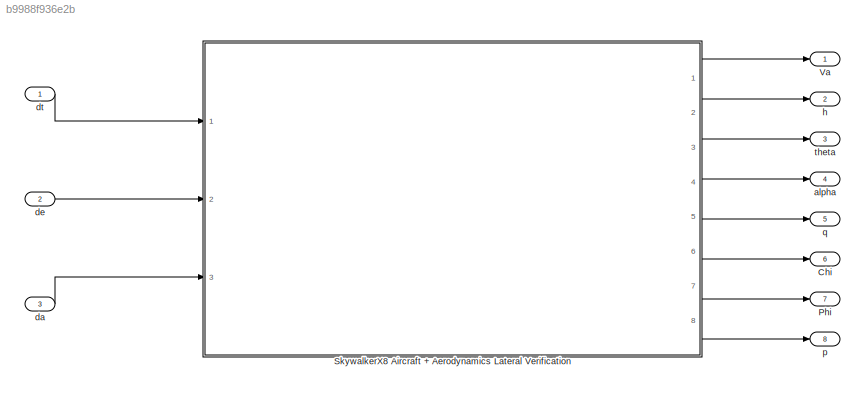
MODEL slx_b9988f936e2b
KIND model
CONFIG AbsTol = auto
CONFIG EnableMultiTasking = off
CONFIG FixedStep = 0.001
CONFIG MaxStep = auto
CONFIG MinStep = auto
CONFIG RelTol = 1e-3
CONFIG SampleTimeConstraint = Unconstrained
CONFIG Solver = FixedStepAuto
CONFIG SolverName = FixedStepAuto
CONFIG StartTime = 0.0
CONFIG StopTime = 10.0
BLOCK [Outport] Chi
  IconDisplay = Port number
  Port = 6
BLOCK [Outport] Phi
  IconDisplay = Port number
  Port = 7
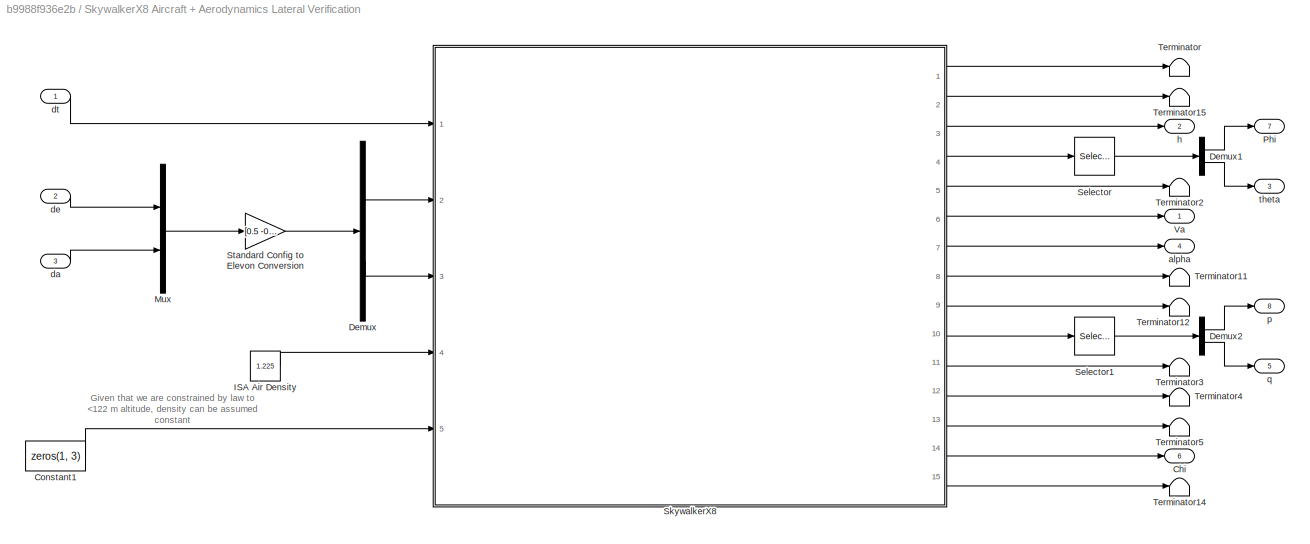
BLOCK [SubSystem] SkywalkerX8 Aircraft + Aerodynamics Lateral Verification
  Ports = [3, 8]
  RequestExecContextInheritance = off
BLOCK [Outport] SkywalkerX8 Aircraft + Aerodynamics Lateral Verification/Chi
  IconDisplay = Port number
  Port = 6
BLOCK [Constant] SkywalkerX8 Aircraft + Aerodynamics Lateral Verification/Constant1
  Value = zeros(1, 3)
BLOCK [Demux] SkywalkerX8 Aircraft + Aerodynamics Lateral Verification/Demux
  DisplayOption = bar
  Outputs = 2
  Ports = [1, 2]
BLOCK [Demux] SkywalkerX8 Aircraft + Aerodynamics Lateral Verification/Demux1
  DisplayOption = bar
  Outputs = 2
  Ports = [1, 2]
BLOCK [Demux] SkywalkerX8 Aircraft + Aerodynamics Lateral Verification/Demux2
  DisplayOption = bar
  Outputs = 2
  Ports = [1, 2]
BLOCK [Constant] SkywalkerX8 Aircraft + Aerodynamics Lateral Verification/ISA Air Density
  Value = 1.225
BLOCK [Mux] SkywalkerX8 Aircraft + Aerodynamics Lateral Verification/Mux
  DisplayOption = bar
  Inputs = 2
  Ports = [2, 1]
BLOCK [Outport] SkywalkerX8 Aircraft + Aerodynamics Lateral Verification/Phi
  IconDisplay = Port number
  Port = 7
BLOCK [Selector] SkywalkerX8 Aircraft + Aerodynamics Lateral Verification/Selector
  IndexOptions = Index vector (dialog)
  Indices = [1, 2]
  InputPortWidth = 3
  OutputSizes = 1
  Ports = [1, 1]
BLOCK [Selector] SkywalkerX8 Aircraft + Aerodynamics Lateral Verification/Selector1
  IndexOptions = Index vector (dialog)
  Indices = [1, 2]
  InputPortWidth = 3
  OutputSizes = 1
  Ports = [1, 1]
BLOCK [ModelReference] SkywalkerX8 Aircraft + Aerodynamics Lateral Verification/SkywalkerX8
  ModelNameDialog = SkywalkerX8_AircraftModel
  ModelReferenceVersion = 1.367
  Ports = [5, 15]
BLOCK [Gain] SkywalkerX8 Aircraft + Aerodynamics Lateral Verification/Standard Config to Elevon Conversion
  Gain = [0.5 -0.5;0.5 0.5]
  Multiplication = Matrix(K*u)
  OutDataTypeStr = Inherit: Inherit via internal rule
  ParamDataTypeStr = Inherit: Inherit via internal rule
  SaturateOnIntegerOverflow = off
BLOCK [Terminator] SkywalkerX8 Aircraft + Aerodynamics Lateral Verification/Terminator
BLOCK [Terminator] SkywalkerX8 Aircraft + Aerodynamics Lateral Verification/Terminator11
BLOCK [Terminator] SkywalkerX8 Aircraft + Aerodynamics Lateral Verification/Terminator12
BLOCK [Terminator] SkywalkerX8 Aircraft + Aerodynamics Lateral Verification/Terminator14
BLOCK [Terminator] SkywalkerX8 Aircraft + Aerodynamics Lateral Verification/Terminator15
BLOCK [Terminator] SkywalkerX8 Aircraft + Aerodynamics Lateral Verification/Terminator2
BLOCK [Terminator] SkywalkerX8 Aircraft + Aerodynamics Lateral Verification/Terminator3
BLOCK [Terminator] SkywalkerX8 Aircraft + Aerodynamics Lateral Verification/Terminator4
BLOCK [Terminator] SkywalkerX8 Aircraft + Aerodynamics Lateral Verification/Terminator5
BLOCK [Outport] SkywalkerX8 Aircraft + Aerodynamics Lateral Verification/Va
  IconDisplay = Port number
BLOCK [Outport] SkywalkerX8 Aircraft + Aerodynamics Lateral Verification/alpha
  IconDisplay = Port number
  Port = 4
BLOCK [Inport] SkywalkerX8 Aircraft + Aerodynamics Lateral Verification/da
  IconDisplay = Port number
  Port = 3
BLOCK [Inport] SkywalkerX8 Aircraft + Aerodynamics Lateral Verification/de
  IconDisplay = Port number
  Port = 2
BLOCK [Inport] SkywalkerX8 Aircraft + Aerodynamics Lateral Verification/dt
  IconDisplay = Port number
BLOCK [Outport] SkywalkerX8 Aircraft + Aerodynamics Lateral Verification/h
  IconDisplay = Port number
  Port = 2
BLOCK [Outport] SkywalkerX8 Aircraft + Aerodynamics Lateral Verification/p
  IconDisplay = Port number
  Port = 8
BLOCK [Outport] SkywalkerX8 Aircraft + Aerodynamics Lateral Verification/q
  IconDisplay = Port number
  Port = 5
BLOCK [Outport] SkywalkerX8 Aircraft + Aerodynamics Lateral Verification/theta
  IconDisplay = Port number
  Port = 3
BLOCK [Outport] Va
  IconDisplay = Port number
BLOCK [Outport] alpha
  IconDisplay = Port number
  Port = 4
BLOCK [Inport] da
  IconDisplay = Port number
  Port = 3
BLOCK [Inport] de
  IconDisplay = Port number
  Port = 2
BLOCK [Inport] dt
  IconDisplay = Port number
BLOCK [Outport] h
  IconDisplay = Port number
  Port = 2
BLOCK [Outport] p
  IconDisplay = Port number
  Port = 8
BLOCK [Outport] q
  IconDisplay = Port number
  Port = 5
BLOCK [Outport] theta
  IconDisplay = Port number
  Port = 3
ANNOTATION SkywalkerX8 Aircraft + Aerodynamics Lateral Verification: Given that we are constrained by law to <122 m altitude, density can be assumed constant
LINE SkywalkerX8 Aircraft + Aerodynamics Lateral Verification/Constant1:1 -> SkywalkerX8 Aircraft + Aerodynamics Lateral Verification/SkywalkerX8:5
LINE SkywalkerX8 Aircraft + Aerodynamics Lateral Verification/Demux1:1 -> SkywalkerX8 Aircraft + Aerodynamics Lateral Verification/Phi:1
LINE SkywalkerX8 Aircraft + Aerodynamics Lateral Verification/Demux1:2 -> SkywalkerX8 Aircraft + Aerodynamics Lateral Verification/theta:1
LINE SkywalkerX8 Aircraft + Aerodynamics Lateral Verification/Demux2:1 -> SkywalkerX8 Aircraft + Aerodynamics Lateral Verification/p:1
LINE SkywalkerX8 Aircraft + Aerodynamics Lateral Verification/Demux2:2 -> SkywalkerX8 Aircraft + Aerodynamics Lateral Verification/q:1
LINE SkywalkerX8 Aircraft + Aerodynamics Lateral Verification/Demux:1 -> SkywalkerX8 Aircraft + Aerodynamics Lateral Verification/SkywalkerX8:2
LINE SkywalkerX8 Aircraft + Aerodynamics Lateral Verification/Demux:2 -> SkywalkerX8 Aircraft + Aerodynamics Lateral Verification/SkywalkerX8:3
LINE SkywalkerX8 Aircraft + Aerodynamics Lateral Verification/ISA Air Density:1 -> SkywalkerX8 Aircraft + Aerodynamics Lateral Verification/SkywalkerX8:4
LINE SkywalkerX8 Aircraft + Aerodynamics Lateral Verification/Mux:1 -> SkywalkerX8 Aircraft + Aerodynamics Lateral Verification/Standard Config to Elevon Conversion:1
LINE SkywalkerX8 Aircraft + Aerodynamics Lateral Verification/Selector1:1 -> SkywalkerX8 Aircraft + Aerodynamics Lateral Verification/Demux2:1
LINE SkywalkerX8 Aircraft + Aerodynamics Lateral Verification/Selector:1 -> SkywalkerX8 Aircraft + Aerodynamics Lateral Verification/Demux1:1
LINE SkywalkerX8 Aircraft + Aerodynamics Lateral Verification/SkywalkerX8:1 -> SkywalkerX8 Aircraft + Aerodynamics Lateral Verification/Terminator:1
LINE SkywalkerX8 Aircraft + Aerodynamics Lateral Verification/SkywalkerX8:10 -> SkywalkerX8 Aircraft + Aerodynamics Lateral Verification/Selector1:1
LINE SkywalkerX8 Aircraft + Aerodynamics Lateral Verification/SkywalkerX8:11 -> SkywalkerX8 Aircraft + Aerodynamics Lateral Verification/Terminator3:1
LINE SkywalkerX8 Aircraft + Aerodynamics Lateral Verification/SkywalkerX8:12 -> SkywalkerX8 Aircraft + Aerodynamics Lateral Verification/Terminator4:1
LINE SkywalkerX8 Aircraft + Aerodynamics Lateral Verification/SkywalkerX8:13 -> SkywalkerX8 Aircraft + Aerodynamics Lateral Verification/Terminator5:1
LINE SkywalkerX8 Aircraft + Aerodynamics Lateral Verification/SkywalkerX8:14 -> SkywalkerX8 Aircraft + Aerodynamics Lateral Verification/Chi:1
LINE SkywalkerX8 Aircraft + Aerodynamics Lateral Verification/SkywalkerX8:15 -> SkywalkerX8 Aircraft + Aerodynamics Lateral Verification/Terminator14:1
LINE SkywalkerX8 Aircraft + Aerodynamics Lateral Verification/SkywalkerX8:2 -> SkywalkerX8 Aircraft + Aerodynamics Lateral Verification/Terminator15:1
LINE SkywalkerX8 Aircraft + Aerodynamics Lateral Verification/SkywalkerX8:3 -> SkywalkerX8 Aircraft + Aerodynamics Lateral Verification/h:1
LINE SkywalkerX8 Aircraft + Aerodynamics Lateral Verification/SkywalkerX8:4 -> SkywalkerX8 Aircraft + Aerodynamics Lateral Verification/Selector:1
LINE SkywalkerX8 Aircraft + Aerodynamics Lateral Verification/SkywalkerX8:5 -> SkywalkerX8 Aircraft + Aerodynamics Lateral Verification/Terminator2:1
LINE SkywalkerX8 Aircraft + Aerodynamics Lateral Verification/SkywalkerX8:6 -> SkywalkerX8 Aircraft + Aerodynamics Lateral Verification/Va:1
LINE SkywalkerX8 Aircraft + Aerodynamics Lateral Verification/SkywalkerX8:7 -> SkywalkerX8 Aircraft + Aerodynamics Lateral Verification/alpha:1
LINE SkywalkerX8 Aircraft + Aerodynamics Lateral Verification/SkywalkerX8:8 -> SkywalkerX8 Aircraft + Aerodynamics Lateral Verification/Terminator11:1
LINE SkywalkerX8 Aircraft + Aerodynamics Lateral Verification/SkywalkerX8:9 -> SkywalkerX8 Aircraft + Aerodynamics Lateral Verification/Terminator12:1
LINE SkywalkerX8 Aircraft + Aerodynamics Lateral Verification/Standard Config to Elevon Conversion:1 -> SkywalkerX8 Aircraft + Aerodynamics Lateral Verification/Demux:1
LINE SkywalkerX8 Aircraft + Aerodynamics Lateral Verification/da:1 -> SkywalkerX8 Aircraft + Aerodynamics Lateral Verification/Mux:2
LINE SkywalkerX8 Aircraft + Aerodynamics Lateral Verification/de:1 -> SkywalkerX8 Aircraft + Aerodynamics Lateral Verification/Mux:1
LINE SkywalkerX8 Aircraft + Aerodynamics Lateral Verification/dt:1 -> SkywalkerX8 Aircraft + Aerodynamics Lateral Verification/SkywalkerX8:1
LINE SkywalkerX8 Aircraft + Aerodynamics Lateral Verification:1 -> Va:1
LINE SkywalkerX8 Aircraft + Aerodynamics Lateral Verification:2 -> h:1
LINE SkywalkerX8 Aircraft + Aerodynamics Lateral Verification:3 -> theta:1
LINE SkywalkerX8 Aircraft + Aerodynamics Lateral Verification:4 -> alpha:1
LINE SkywalkerX8 Aircraft + Aerodynamics Lateral Verification:5 -> q:1
LINE SkywalkerX8 Aircraft + Aerodynamics Lateral Verification:6 -> Chi:1
LINE SkywalkerX8 Aircraft + Aerodynamics Lateral Verification:7 -> Phi:1
LINE SkywalkerX8 Aircraft + Aerodynamics Lateral Verification:8 -> p:1
LINE da:1 -> SkywalkerX8 Aircraft + Aerodynamics Lateral Verification:3
LINE de:1 -> SkywalkerX8 Aircraft + Aerodynamics Lateral Verification:2
LINE dt:1 -> SkywalkerX8 Aircraft + Aerodynamics Lateral Verification:1
